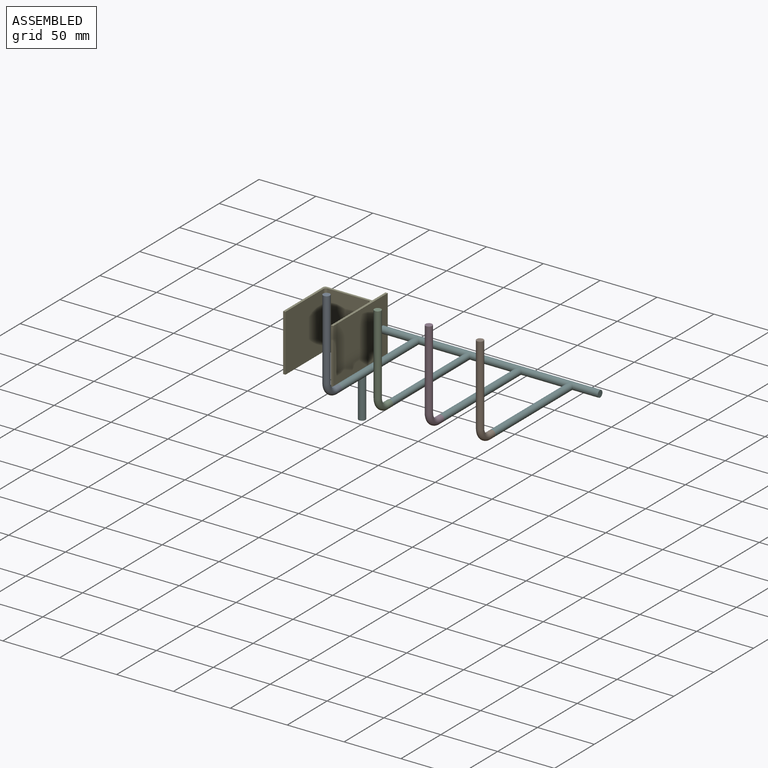
[diagram: assembled view]
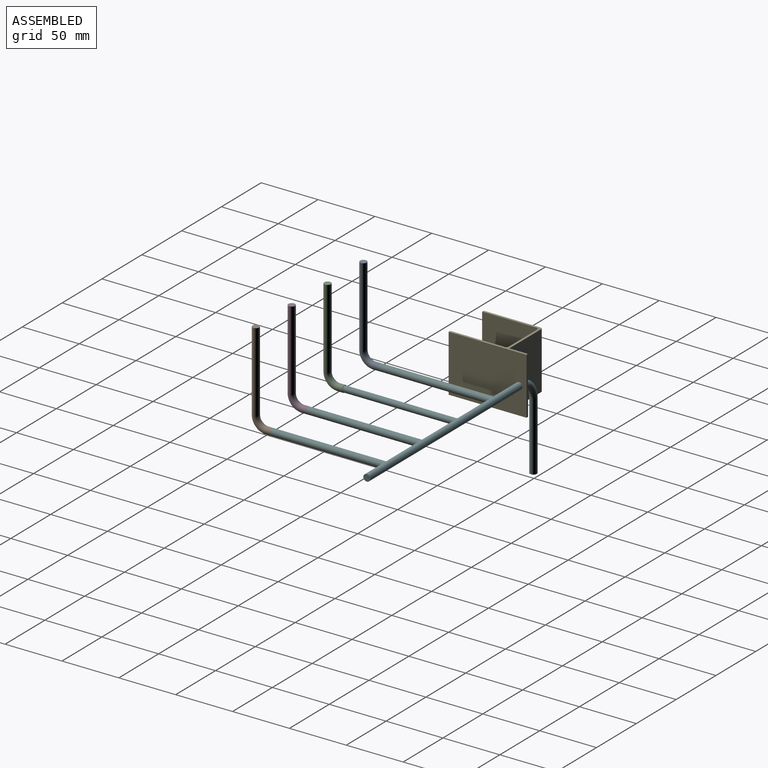
[diagram: assembled view, second angle]
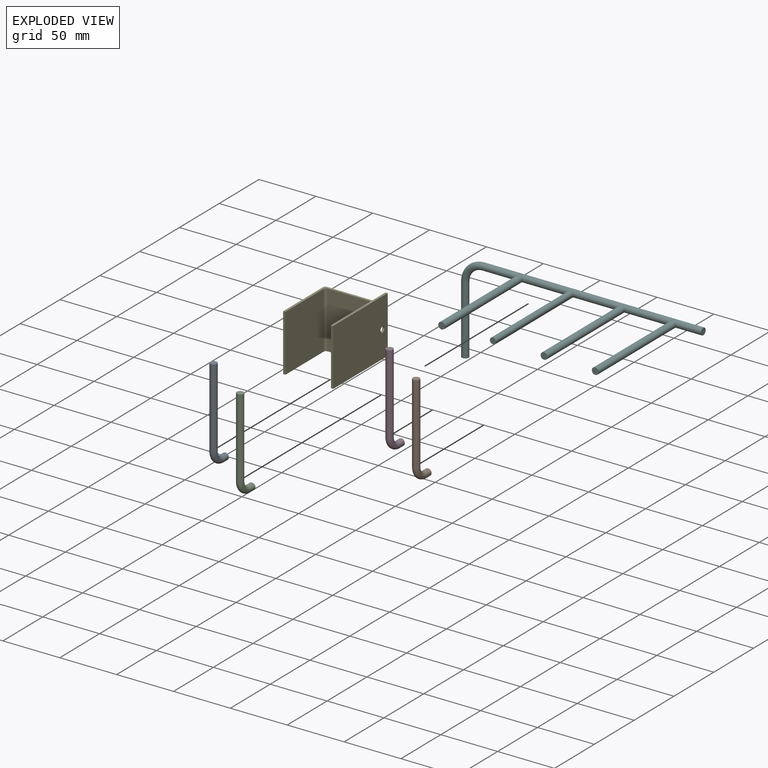
[diagram: exploded view]
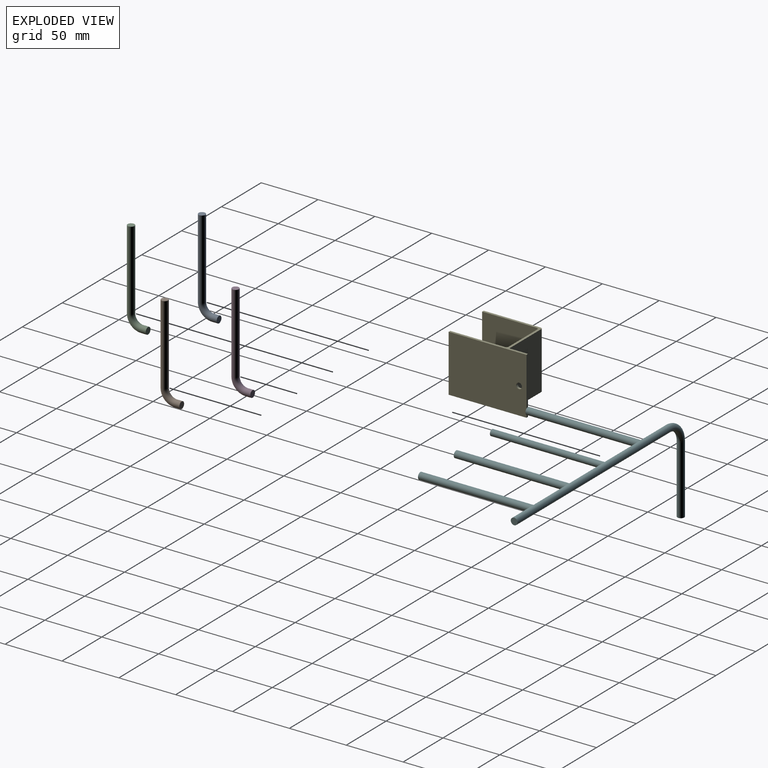
[diagram: exploded view, second angle]
ASSEMBLY  parts=6 mates=5
PART A: 5 faces, bbox 6x84.1x19.1 mm
  f0: plane 6x6mm, normal (0,0,1), area 28.3mm2, adj f2
  f1: plane 6x6mm, normal (0,-1,0), area 28.3mm2, adj f4
  f2: cylinder r=3mm len=6mm, axis (0,0,-1), area 94.2mm2, adj f0,f3
  f3: torus R=10mm, axis (-1,0,0), area 296.1mm2, adj f2,f4
  f4: cylinder r=3mm len=70mm, axis (0,-1,0), area 1319.5mm2, adj f1,f3
PART B: same geometry as A
PART C: same geometry as A
PART D: same geometry as A
PART E: 16 faces, bbox 44x50x68.4 mm
  f0: cylinder r=2mm len=50mm, axis (0,1,0), area 157.1mm2, adj f1,f10,f11,f12
  f1: plane 50x48mm, normal (-1,0,0), area 2400mm2, adj f0,f2,f11,f12
  f2: plane 50x2mm, normal (0,0,-1), area 100mm2, adj f1,f3,f11,f12
  f3: plane 68.43x50mm, normal (1,0,0), area 3401.9mm2, adj f2,f11,f12,f14,f15
  f4: plane 50x40mm, normal (0,0,1), area 2000mm2, adj f5,f11,f12,f13
  f5: cylinder r=2mm len=50mm, axis (0,1,0), area 157.1mm2, adj f4,f6,f11,f12
  f6: plane 50x50mm, normal (-1,0,0), area 2500mm2, adj f5,f7,f11,f12
  f7: plane 50x2mm, normal (0,0,-1), area 100mm2, adj f6,f8,f11,f12
  f8: plane 50x48mm, normal (1,0,0), area 2400mm2, adj f7,f9,f11,f12
  f9: cylinder r=2mm len=50mm, axis (0,1,0), area 157.1mm2, adj f8,f10,f11,f12
  f10: plane 50x36mm, normal (0,0,-1), area 1800mm2, adj f0,f9,f11,f12
  f11: plane 68.43x44mm, normal (0,-1,0), area 321.7mm2, adj f0,f1,f2,f3,f4,f5,f6,f7
  f12: plane 68.43x44mm, normal (0,1,0), area 321.7mm2, adj f0,f1,f2,f3,f4,f5,f6,f7
  f13: plane 50x16.43mm, normal (-1,0,0), area 801.9mm2, adj f4,f11,f12,f14,f15
  f14: plane 50x2mm, normal (0,0,1), area 100mm2, adj f3,f11,f12,f13
  f15: cylinder r=2.5mm len=5mm, axis (1,0,0), area 31.4mm2, adj f3,f13
PART F: 13 faces, bbox 213.8x103x80.6 mm
  f0: cylinder r=3mm len=193.28mm, axis (-1,0,0), area 3509.5mm2, adj f1,f3,f5,f7,f9,f11
  f1: plane 6x6mm, normal (1,0,0), area 28.3mm2, adj f0
  f2: plane 6x6mm, normal (0,0,-1), area 28.3mm2, adj f4
  f3: torus R=16mm, axis (0,-1,0), area 473.7mm2, adj f0,f4
  f4: cylinder r=3mm len=60mm, axis (0,0,-1), area 1131mm2, adj f2,f3
  f5: cylinder r=2.67mm len=98.63mm, axis (0,1,0), area 1639.6mm2, adj f0,f6
  f6: plane 5.34x5.34mm, normal (0,-1,0), area 22.4mm2, adj f5
  f7: cylinder r=3mm len=100mm, axis (0,1,0), area 1849mm2, adj f0,f8
  f8: plane 6x6mm, normal (0,-1,0), area 28.3mm2, adj f7
  f9: cylinder r=3mm len=100mm, axis (0,1,0), area 1849mm2, adj f0,f10
  f10: plane 6x6mm, normal (0,-1,0), area 28.3mm2, adj f9
  f11: cylinder r=3mm len=100mm, axis (0,1,0), area 1849mm2, adj f0,f12
  f12: plane 6x6mm, normal (0,-1,0), area 28.3mm2, adj f11
PLACE A rot(axis=(-1,0,0),90deg) t=(0,-100,0)mm
PLACE B rot(axis=(-1,0,0),90deg) t=(135,-100,0)mm
PLACE C rot(axis=(-1,0,0),90deg) t=(45,-100,0)mm
PLACE D rot(axis=(-1,0,0),90deg) t=(90,-100,0)mm
PLACE E rot(axis=(-1,0,0),90deg) t=(-33.28,-61.94,-23.58)mm
PLACE F at identity fixed
MATE fastened E.f15 <-> F.f0  axis (-1,0,0) through (-33.28,0,0)mm
MATE revolute D.f2 <-> F.f7  axis (0,1,0) through (90,-100,0)mm
MATE revolute B.f2 <-> F.f9  axis (0,1,0) through (135,-100,0)mm
MATE revolute A.f2 <-> F.f11  axis (0,1,0) through (0,-100,0)mm
MATE revolute C.f2 <-> F.f5  axis (0,1,0) through (45,-100,0)mm
